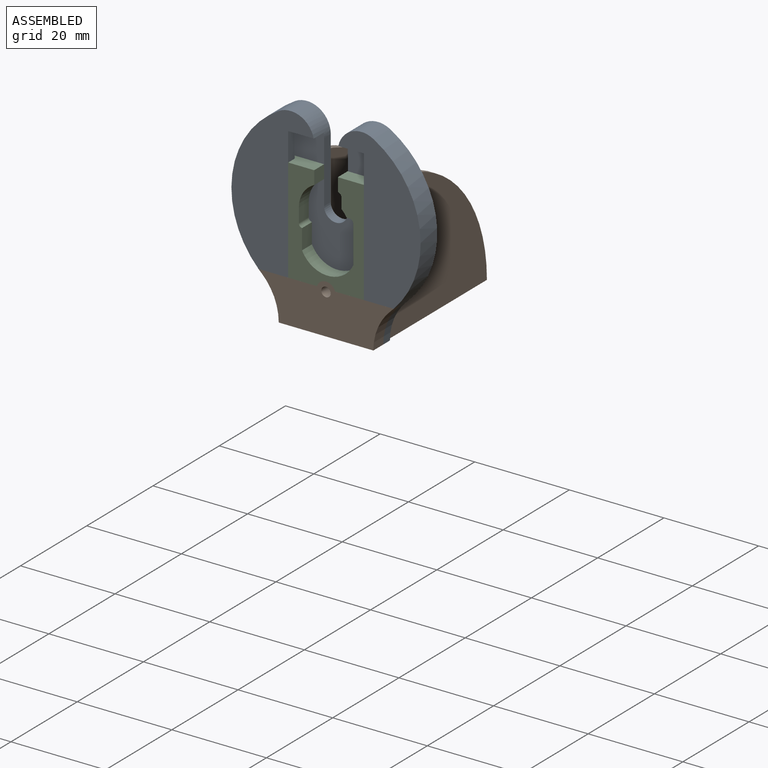
[diagram: assembled view]
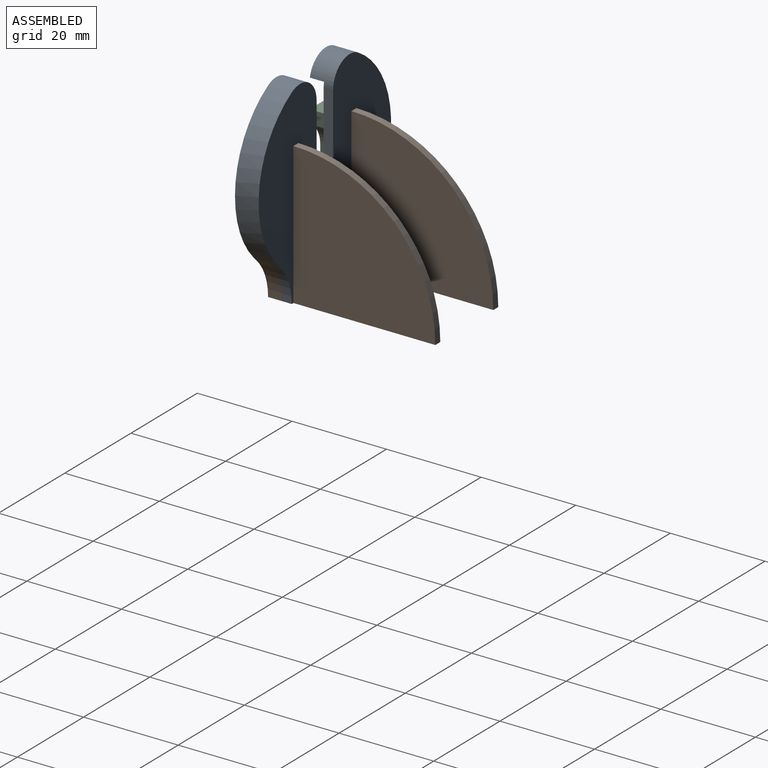
[diagram: assembled view, second angle]
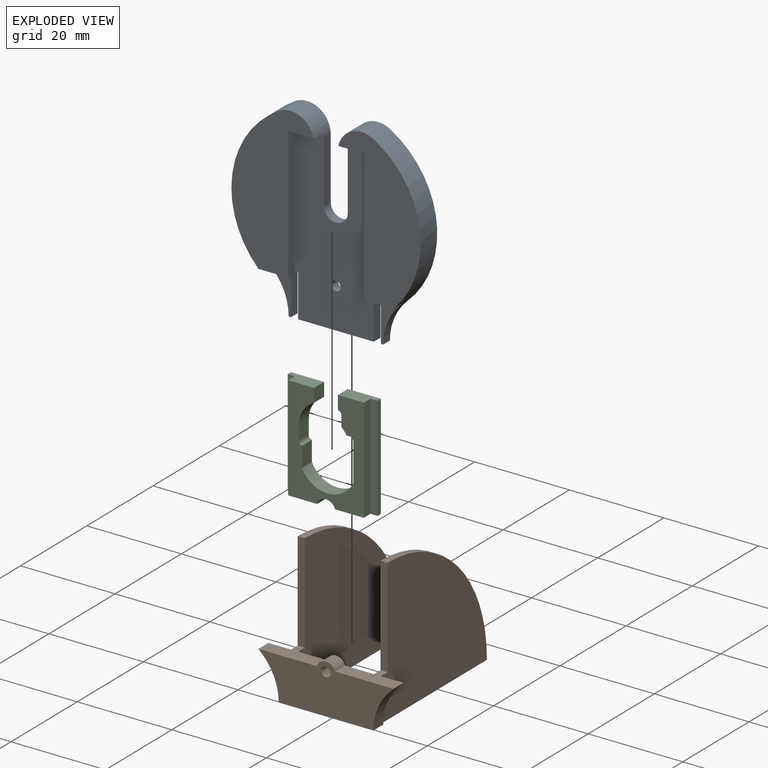
[diagram: exploded view]
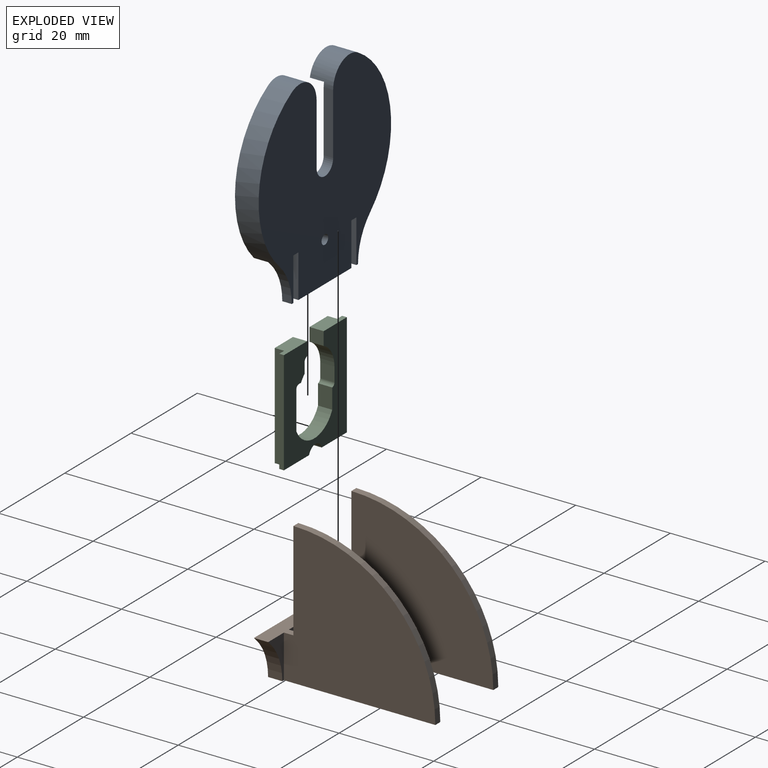
[diagram: exploded view, second angle]
ASSEMBLY  parts=3 mates=2
PART A: 35 faces, bbox 40x5x41.1 mm
  f0: plane 16x2mm, normal (0,0,-1), area 32mm2, adj f2,f4,f31,f34
  f1: plane 2x0.5mm, normal (0,0,-1), area 1mm2, adj f3,f4,f15,f30
  f2: plane 37.1x19mm, normal (0,-1,0), area 594.6mm2, adj f0,f10,f11,f17,f18,f20,f21,f22
  f3: plane 9.1x4.78mm, normal (0,-1,0), area 16.6mm2, adj f1,f15,f16,f26,f30
  f4: plane 41.09x40mm, normal (0,1,0), area 1179.6mm2, adj f0,f1,f11,f12,f13,f14,f15,f16
  f5: plane 31.99x17.4mm, normal (0,-1,0), area 318mm2, adj f9,f10,f12,f24,f27
  f6: plane 31.99x17.4mm, normal (0,-1,0), area 318mm2, adj f16,f18,f19,f25,f26
  f7: plane 28x1.5mm, normal (0,1,0), area 42mm2, adj f18,f19,f20,f26
  f8: plane 28x1.5mm, normal (0,1,0), area 42mm2, adj f9,f10,f21,f27
  f9: plane 28x2mm, normal (1,0,0), area 56mm2, adj f5,f8,f10,f27
  f10: plane 6.9x3mm, normal (0,0,-1), area 17.7mm2, adj f2,f5,f8,f9,f21,f24
  f11: plane 12.99x2mm, normal (1,0,0), area 26mm2, adj f2,f4,f22,f24
  f12: cylinder r=20mm len=31.9mm, axis (0,1,0), area 183.9mm2, adj f4,f5,f13,f23,f24,f27
  f13: cylinder r=11.68mm len=8.52mm, axis (0,1,0), area 19.1mm2, adj f4,f12,f14,f23
  f14: plane 2x0.5mm, normal (0,0,-1), area 1mm2, adj f4,f13,f23,f33
  f15: cylinder r=11.68mm len=8.52mm, axis (0,1,0), area 19.1mm2, adj f1,f3,f4,f16
  f16: cylinder r=20mm len=31.9mm, axis (0,1,0), area 183.9mm2, adj f3,f4,f6,f15,f25,f26
  f17: plane 12.99x2mm, normal (-1,0,0), area 26mm2, adj f2,f4,f22,f25
  f18: plane 6.9x3mm, normal (0,0,-1), area 17.7mm2, adj f2,f6,f7,f19,f20,f25
  f19: plane 28x2mm, normal (-1,0,0), area 56mm2, adj f6,f7,f18,f26
  f20: plane 28x1mm, normal (-1,0,0), area 28mm2, adj f2,f7,f18,f26
  f21: plane 28x1mm, normal (1,0,0), area 28mm2, adj f2,f8,f10,f27
  f22: cylinder r=2.5mm len=5mm, axis (0,-1,0), area 15.7mm2, adj f2,f4,f11,f17
  f23: plane 9.1x4.78mm, normal (0,-1,0), area 16.6mm2, adj f12,f13,f14,f27,f33
  f24: cylinder r=5mm len=7.5mm, axis (0,1,0), area 49.3mm2, adj f2,f4,f5,f10,f11,f12
  f25: cylinder r=5mm len=7.5mm, axis (0,1,0), area 49.3mm2, adj f2,f4,f6,f16,f17,f18
  f26: plane 6.28x3mm, normal (0,0,-1), area 17.3mm2, adj f3,f6,f7,f16,f19,f20
  f27: plane 6.28x3mm, normal (0,0,-1), area 17.3mm2, adj f5,f8,f9,f12,f21,f23
  f28: cylinder r=1mm len=2mm, axis (0,1,0), area 12.6mm2, adj f2,f4
  f29: plane 2x1.5mm, normal (0,0,-1), area 3mm2, adj f2,f4,f30,f31
  f30: plane 9.1x2mm, normal (-1,0,0), area 18.2mm2, adj f1,f3,f4,f29
  f31: plane 9.1x2mm, normal (1,0,0), area 18.2mm2, adj f0,f2,f4,f29
  f32: plane 2x1.5mm, normal (0,0,-1), area 3mm2, adj f2,f4,f33,f34
  f33: plane 9.1x2mm, normal (1,0,0), area 18.2mm2, adj f4,f14,f23,f32
  f34: plane 9.1x2mm, normal (-1,0,0), area 18.2mm2, adj f0,f2,f4,f32
PART B: 21 faces, bbox 28.6x35x30 mm
  f0: plane 32x30mm, normal (-1,0,0), area 725.1mm2, adj f2,f6,f11,f18,f20
  f1: plane 32x30mm, normal (1,0,0), area 725.1mm2, adj f2,f8,f11,f17,f19
  f2: plane 16x10.5mm, normal (0,1,0), area 146.4mm2, adj f0,f1,f6,f7,f8,f11,f12
  f3: plane 9.1x4.78mm, normal (0,1,0), area 16.6mm2, adj f4,f5,f6,f11,f15
  f4: cylinder r=11.68mm len=8.52mm, axis (0,1,0), area 28.6mm2, adj f3,f5,f11,f13
  f5: cylinder r=20mm len=3mm, axis (0,1,0), area 2.5mm2, adj f3,f4,f6,f13
  f6: plane 12.38x5mm, normal (0,0,1), area 40.1mm2, adj f0,f2,f3,f5,f7,f13,f15,f18
  f7: cylinder r=2mm len=3.82mm, axis (0,1,0), area 15.2mm2, adj f2,f6,f8,f13
  f8: plane 12.38x5mm, normal (0,0,1), area 40.1mm2, adj f1,f2,f7,f9,f13,f14,f16,f17
  f9: cylinder r=20mm len=3mm, axis (0,1,0), area 2.5mm2, adj f8,f10,f13,f14
  f10: cylinder r=11.68mm len=8.52mm, axis (0,1,0), area 28.6mm2, adj f9,f11,f13,f14
  f11: plane 35x20mm, normal (0,0,-1), area 156mm2, adj f0,f1,f2,f3,f4,f10,f13,f14
  f12: cylinder r=1mm len=3mm, axis (0,1,0), area 18.8mm2, adj f2,f13
  f13: plane 28.57x10.5mm, normal (0,-1,0), area 206.8mm2, adj f4,f5,f6,f7,f8,f9,f10,f11
  f14: plane 9.1x4.78mm, normal (0,1,0), area 16.6mm2, adj f8,f9,f10,f11,f16
  f15: plane 32x30mm, normal (1,0,0), area 725.1mm2, adj f3,f6,f11,f18,f20
  f16: plane 32x30mm, normal (-1,0,0), area 725.1mm2, adj f8,f11,f14,f17,f19
  f17: plane 20.9x1.5mm, normal (0,-1,0), area 31.3mm2, adj f1,f8,f16,f19
  f18: plane 20.9x1.5mm, normal (0,-1,0), area 31.3mm2, adj f0,f6,f15,f20
  f19: cylinder r=30mm len=30mm, axis (1,0,0), area 70.7mm2, adj f1,f11,f16,f17
  f20: cylinder r=30mm len=30mm, axis (1,0,0), area 70.7mm2, adj f0,f11,f15,f18
PART C: 27 faces, bbox 19x3x22 mm
  f0: plane 22x2mm, normal (-1,0,0), area 44mm2, adj f16,f17,f21,f25
  f1: plane 7x3mm, normal (0,0,1), area 18mm2, adj f2,f20,f21,f22,f23,f24
  f2: plane 3x2.82mm, normal (-1,0,0), area 8.5mm2, adj f1,f3,f21,f22
  f3: cylinder r=5.75mm len=3mm, axis (0,1,0), area 1.3mm2, adj f2,f4,f21,f22
  f4: cylinder r=0.75mm len=3mm, axis (0,1,0), area 2.4mm2, adj f3,f5,f21,f22
  f5: plane 3x2.25mm, normal (-1,0,0), area 6.7mm2, adj f4,f6,f21,f22
  f6: cylinder r=5.75mm len=3mm, axis (0,1,0), area 5.2mm2, adj f5,f7,f21,f22
  f7: plane 3x0.67mm, normal (0,0,-1), area 2mm2, adj f6,f8,f21,f22
  f8: cylinder r=0.75mm len=3mm, axis (0,1,0), area 3.5mm2, adj f7,f9,f21,f22
  f9: plane 8x3mm, normal (-1,0,0), area 24mm2, adj f8,f10,f21,f22
  f10: cylinder r=6.01mm len=10.83mm, axis (0,1,0), area 40.5mm2, adj f9,f11,f21,f22
  f11: plane 4.25x3mm, normal (1,0,0), area 12.8mm2, adj f10,f12,f21,f22
  f12: cylinder r=0.75mm len=3mm, axis (0,1,0), area 3.3mm2, adj f11,f13,f21,f22
  f13: plane 3x3mm, normal (1,0,0), area 9mm2, adj f12,f14,f21,f22
  f14: cylinder r=5.75mm len=5.18mm, axis (0,1,0), area 19.3mm2, adj f13,f15,f21,f22
  f15: plane 3x2.82mm, normal (1,0,0), area 8.5mm2, adj f14,f16,f21,f22
  f16: plane 7x3mm, normal (0,0,1), area 18mm2, adj f0,f15,f21,f22,f25,f26
  f17: plane 7.59x3mm, normal (0,0,-1), area 19.8mm2, adj f0,f18,f21,f22,f25,f26
  f18: cylinder r=2mm len=3.82mm, axis (0,1,0), area 15.2mm2, adj f17,f19,f21,f22
  f19: plane 7.59x3mm, normal (0,0,-1), area 19.8mm2, adj f18,f20,f21,f22,f23,f24
  f20: plane 22x2mm, normal (1,0,0), area 44mm2, adj f1,f19,f21,f23
  f21: plane 22x16mm, normal (0,-1,0), area 174.3mm2, adj f0,f1,f2,f3,f4,f5,f6,f7
  f22: plane 22x19mm, normal (0,1,0), area 240.3mm2, adj f1,f2,f3,f4,f5,f6,f7,f8
  f23: plane 22x1.5mm, normal (0,-1,0), area 33mm2, adj f1,f19,f20,f24
  f24: plane 22x1mm, normal (1,0,0), area 22mm2, adj f1,f19,f22,f23
  f25: plane 22x1.5mm, normal (0,-1,0), area 33mm2, adj f0,f16,f17,f26
  f26: plane 22x1mm, normal (-1,0,0), area 22mm2, adj f16,f17,f22,f25
PLACE A at identity fixed
PLACE B t=(0,1,-23.1)mm
PLACE C t=(0,1,0)mm
MATE slider C.f17 <-> A.f27  axis (0,0,1) through (-8,-2,-14)mm
MATE fastened B.f8 <-> A.f32  axis (0,0,1) through (-9.5,3,-14)mm
